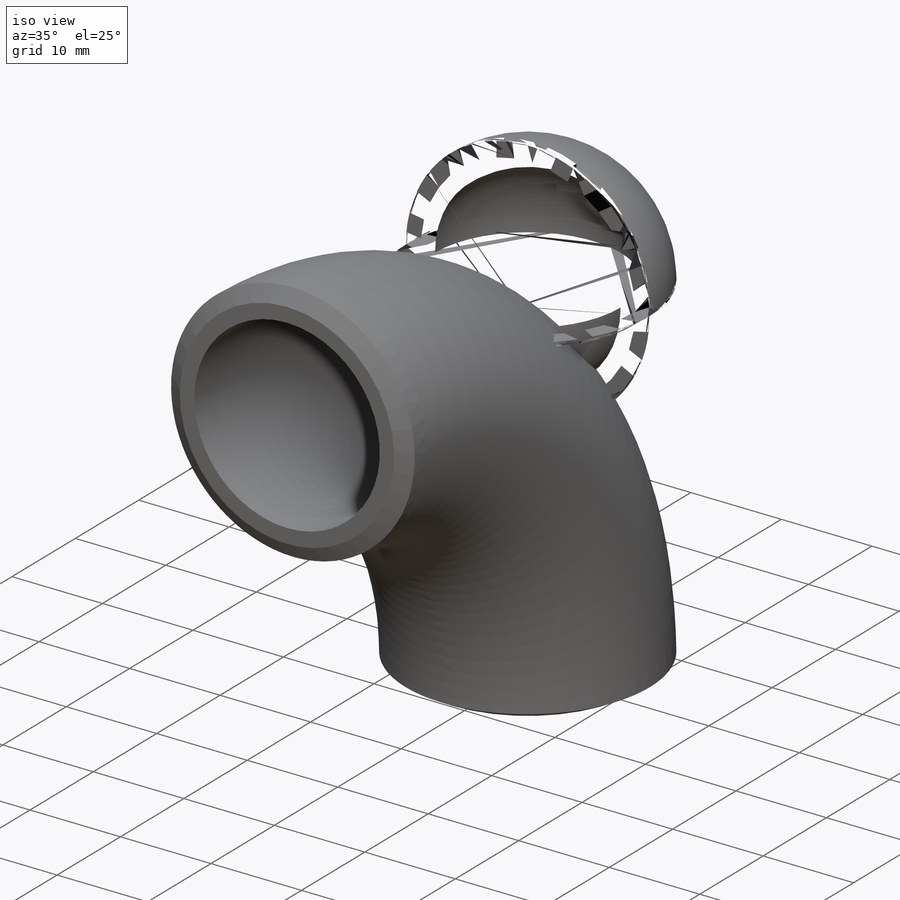
[diagram: iso view]
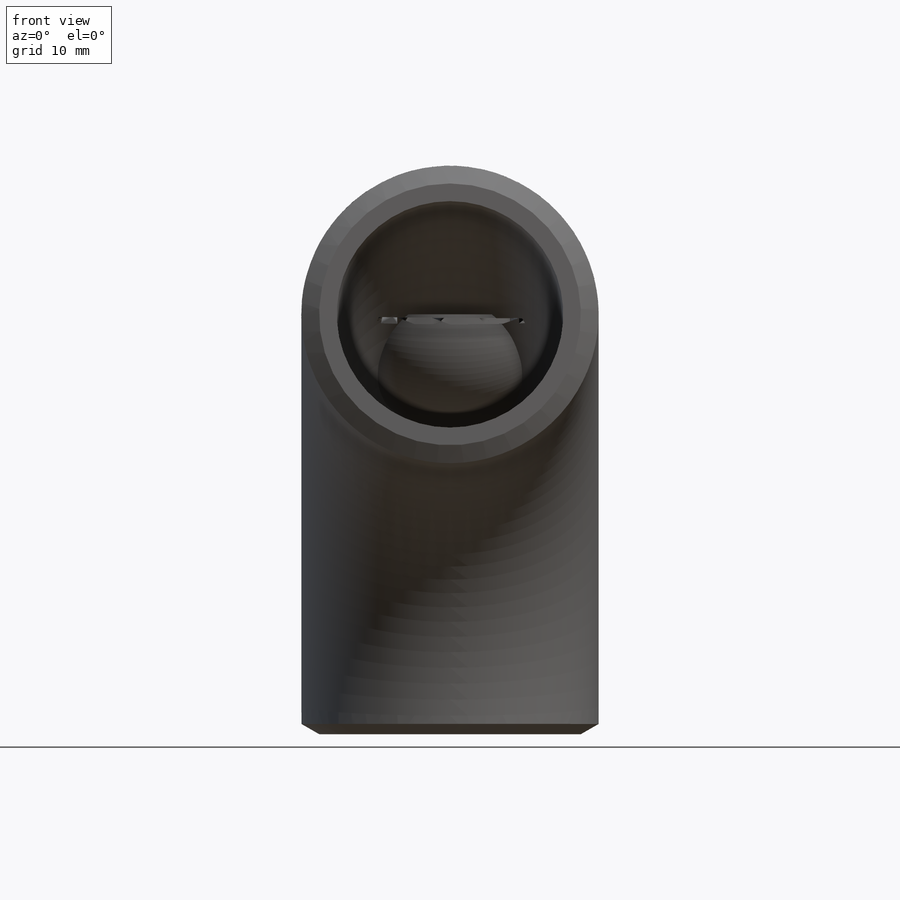
[diagram: front view]
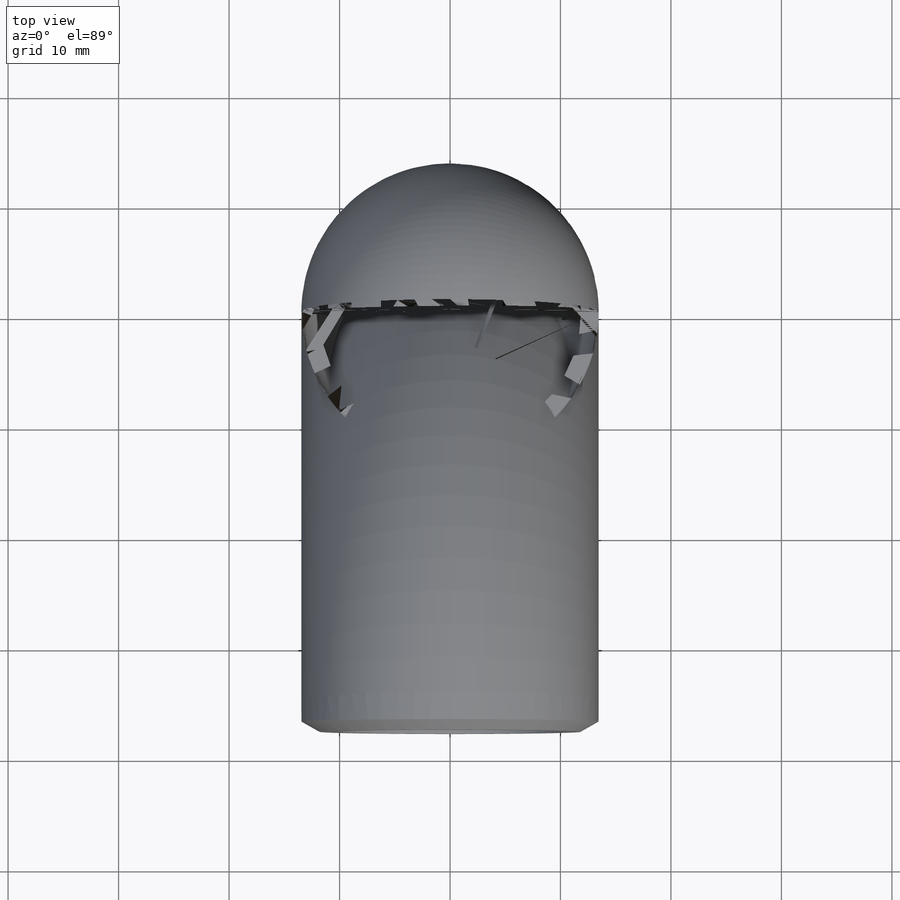
[diagram: top view]
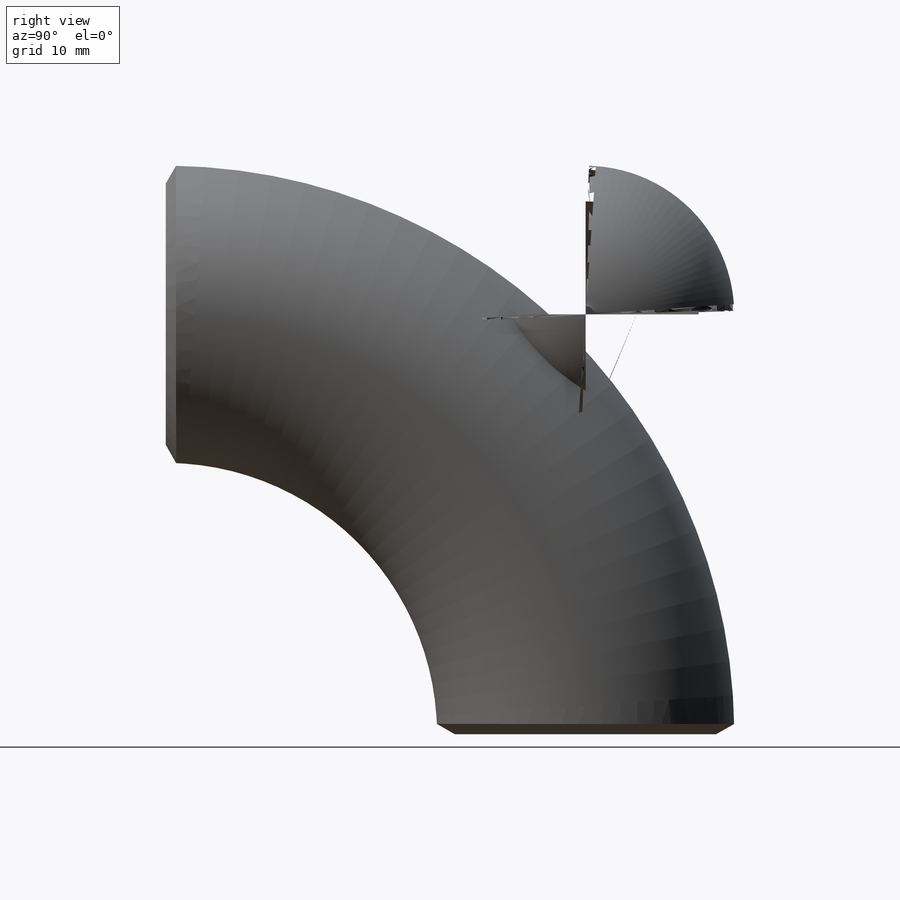
[diagram: right view]
SOLIDWORKS PART (.sldprt)
format: sldprt  version: not decoded by parser v0  size: 2,093,568 bytes
history: native  units: mm
features: sketch x6, plane x4, cut_revolve x4, material x1, sweep x1 + 5 further entries (+10 scaffold rows collapsed; 1 parser-record rows omitted)
feature tree (32):
  scaffold x10  (default folders/planes/origin — collapsed)
  material  "P235"
  plane  "Ebene xy"
  plane  "Ebene xz"
  plane  "Ebene yz"
  "Tabelle"
  parser-record x1  (decoder bookkeeping rows leaked as tree rows — omitted from the tree; the rows remain in map.json)
  "y - Achse"
  "z - Achse"
  sketch  "Pfad"  dims[R=38.0mm D1=~38.959436mm D2=~114.326631mm Winkel=90.0deg]
  plane  "Ebene1"
  sketch  "Rohr"  dims[D1=~55.673752mm da=21.3mm WD=2.0mm]
  sweep  "Bogen"
  sketch  "SkzFase"  dims[c1.D1=1.6mm c1.D2=198.45mm c2.D2=30.0deg c2.D3=~16.465423mm c3.D3=30.0deg c3.D4=1.6mm c3.D1=9.7656mm c4.D1=30.0deg c4.WD1=5.0mm c4.D2=1.6mm c4.D3=~35.227593mm c5.D3=30.0deg c5.WD2=5.0mm c5.D4=1.6mm c5.D5=12.0mm c5.D6=~13.990124mm c6.D6=30.0deg c6.D7=2.0mm c6.D8=1.6mm c6.D9=6.25mm c7.D8=1.6mm c7.=ss=5.0mm c7.s1=2.0mm c7.D2=1.6mm c7.D3=~26.049822mm c8.D3=30.0deg c8.D4=2.0mm c8.s2=2.0mm c9.s2=2.0mm c9.s1=2.0mm]
  cut_revolve  "Fase1"  Angle=360deg
  cut_revolve  "Fase2"  [1 undecoded]
  sketch  "Skizze1<3>"  dims[D1=360.0deg]
  sketch  "SkzWDAngl"  dims[c1.D1=~102.966337mm c2.D1=15.0deg c3.D1=~131.168272mm c4.D1=15.0deg c5.D1=104.55mm c6.D1=~160.930835deg c7.D1=~33.076954mm c8.D1=75.0deg c8.D2=1.0mm c8.D3=~1706.001465mm c8.D4=~52.292842mm c9.D4=75.0deg c10.D4=~22.958753mm c11.D4=75.0deg c11.D1=~1706.001465mm c11.D2=~103.625311mm c12.D2=75.0deg c13.D2=~7.182444mm c14.D2=75.0deg c15.D2=104.05mm c16.D2=75.0deg c17.D2=104.05mm c18.D2=75.0deg c18.D1=1.0mm c19.D2=~9.606728mm c20.D2=75.0deg c20.D3=1.0mm c20.D4=~9.566048mm c21.D4=75.0deg]
  cut_revolve  "WDAngl1"  [1 undecoded]
  sketch  "SkzWDAngl<7>"  dims[D1=360.0deg]
  cut_revolve  "WDAngl2"  Angle=360deg
  "Richtung2"
  "Richtung1"
decode coverage: 8 of 11 modeling features carry decoded parameters; 5 rows unclassified (native names shown)
note: ~ marks probable driven/reference dimensions
note: 2 parameter values undecoded
note: suppression state not decoded; provenance and decode notes live in map.json
